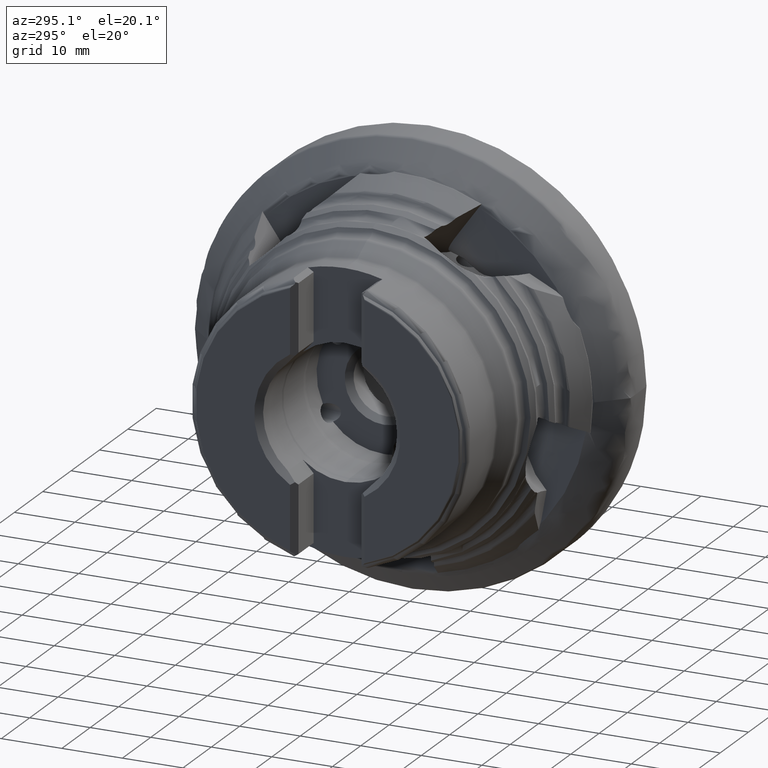
[diagram: clean part render]
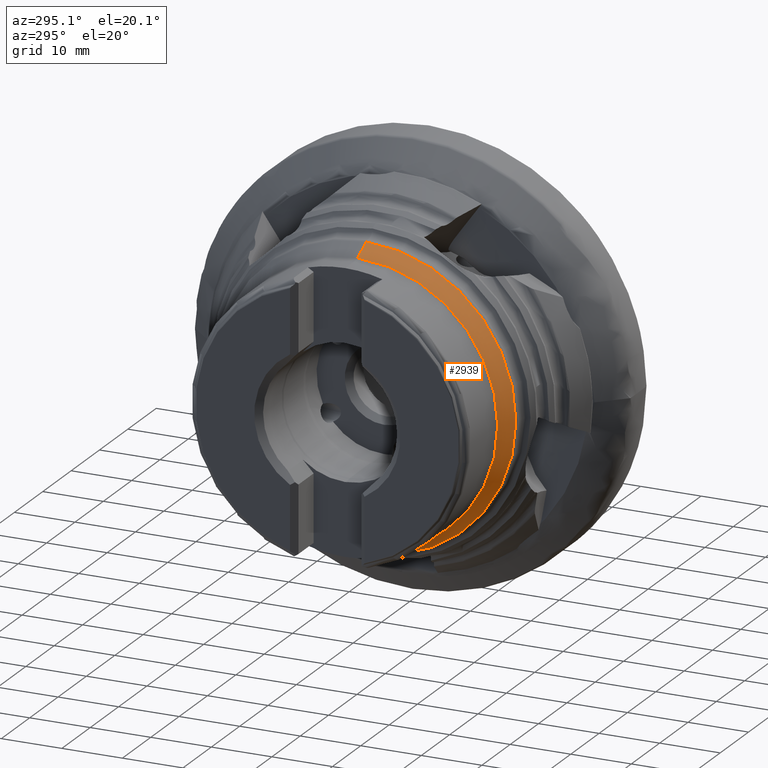
[diagram: same view with one face highlighted and labeled with its STEP entity id]
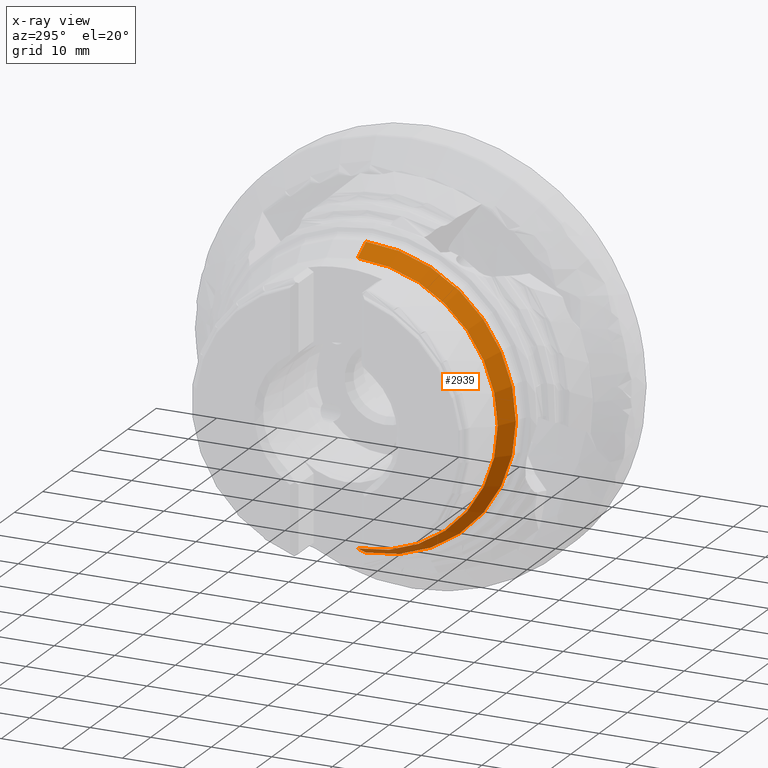
[diagram: x-ray of the same camera — body ghosted, the highlighted face saturated]
A machine part, auxiliary view. The second image highlights one B-rep face of the part: STEP entity #2939.
The next image is the same camera in x-ray: the body ghosted, the highlighted face saturated — about 4% of this face is hidden behind the body in this view.
In plain terms, the highlighted conical surface has half-angle 28.998 deg.
Its self-contained STEP definition (entity closure, byte-faithful):
#434 = LINE ( 'NONE', #4202, #5223 ) ;
#870 = CARTESIAN_POINT ( 'NONE',  ( -25.45000000000000600, 0.0000000000000000000, 0.0000000000000000000 ) ) ;
#953 = EDGE_CURVE ( 'NONE', #2818, #6652, #7921, .T. ) ;
#1309 = EDGE_CURVE ( 'NONE', #6652, #7816, #1784, .T. ) ;
#1784 = LINE ( 'NONE', #2617, #3128 ) ;
#1854 = EDGE_CURVE ( 'NONE', #5524, #7816, #7547, .T. ) ;
#1887 = AXIS2_PLACEMENT_3D ( 'NONE', #870, #2766, #7123 ) ;
#1916 = EDGE_LOOP ( 'NONE', ( #7570, #5066, #3849, #4168 ) ) ;
#1962 = DIRECTION ( 'NONE',  ( 0.8746334941362164900, 0.0000000000000000000, -0.4847847470115710400 ) ) ;
#2074 = CARTESIAN_POINT ( 'NONE',  ( -25.45000000000000600, 0.0000000000000000000, 0.0000000000000000000 ) ) ;
#2617 = CARTESIAN_POINT ( 'NONE',  ( -25.45000000000000600, 0.0000000000000000000, -24.75301659468426200 ) ) ;
#2691 = DIRECTION ( 'NONE',  ( 0.0000000000000000000, 0.0000000000000000000, -1.000000000000000000 ) ) ;
#2766 = DIRECTION ( 'NONE',  ( 1.000000000000000000, -0.0000000000000000000, -0.0000000000000000000 ) ) ;
#2818 = VERTEX_POINT ( 'NONE', #2990 ) ;
#2939 = ADVANCED_FACE ( 'NONE', ( #6630 ), #5609, .T. ) ;
#2990 = CARTESIAN_POINT ( 'NONE',  ( -28.37999999999999900, 2.931927917970026500E-015, 23.12899999999999800 ) ) ;
#3050 = DIRECTION ( 'NONE',  ( 0.8746334941362164900, 5.936900887031797500E-017, 0.4847847470115710400 ) ) ;
#3128 = VECTOR ( 'NONE', #1962, 1000.000000000000000 ) ;
#3158 = CARTESIAN_POINT ( 'NONE',  ( -28.37999999999999900, 0.0000000000000000000, 0.0000000000000000000 ) ) ;
#3849 = ORIENTED_EDGE ( 'NONE', *, *, #1309, .T. ) ;
#4168 = ORIENTED_EDGE ( 'NONE', *, *, #1854, .F. ) ;
#4202 = CARTESIAN_POINT ( 'NONE',  ( -25.45000000000000600, 3.031370254192139900E-015, 24.75301659468426200 ) ) ;
#4313 = AXIS2_PLACEMENT_3D ( 'NONE', #3158, #7545, #4941 ) ;
#4941 = DIRECTION ( 'NONE',  ( 0.0000000000000000000, 0.0000000000000000000, -1.000000000000000000 ) ) ;
#5066 = ORIENTED_EDGE ( 'NONE', *, *, #953, .T. ) ;
#5223 = VECTOR ( 'NONE', #3050, 1000.000000000000000 ) ;
#5524 = VERTEX_POINT ( 'NONE', #6710 ) ;
#5609 = CONICAL_SURFACE ( 'NONE', #5765, 24.75301659468426200, 0.5061170443883521400 ) ;
#5723 = EDGE_CURVE ( 'NONE', #2818, #5524, #434, .T. ) ;
#5765 = AXIS2_PLACEMENT_3D ( 'NONE', #2074, #6397, #2691 ) ;
#6397 = DIRECTION ( 'NONE',  ( 1.000000000000000000, -0.0000000000000000000, -0.0000000000000000000 ) ) ;
#6630 = FACE_OUTER_BOUND ( 'NONE', #1916, .T. ) ;
#6652 = VERTEX_POINT ( 'NONE', #7575 ) ;
#6710 = CARTESIAN_POINT ( 'NONE',  ( -25.45000000000000600, 3.040217311184630900E-015, 24.75301659468426200 ) ) ;
#7123 = DIRECTION ( 'NONE',  ( 0.0000000000000000000, 0.0000000000000000000, -1.000000000000000000 ) ) ;
#7421 = CARTESIAN_POINT ( 'NONE',  ( -25.45000000000000600, 0.0000000000000000000, -24.75301659468426200 ) ) ;
#7545 = DIRECTION ( 'NONE',  ( 1.000000000000000000, -0.0000000000000000000, -0.0000000000000000000 ) ) ;
#7547 = CIRCLE ( 'NONE', #1887, 24.75301659468426200 ) ;
#7570 = ORIENTED_EDGE ( 'NONE', *, *, #5723, .F. ) ;
#7575 = CARTESIAN_POINT ( 'NONE',  ( -28.37999999999999900, 0.0000000000000000000, -23.12899999999999800 ) ) ;
#7816 = VERTEX_POINT ( 'NONE', #7421 ) ;
#7921 = CIRCLE ( 'NONE', #4313, 23.12899999999999800 ) ;